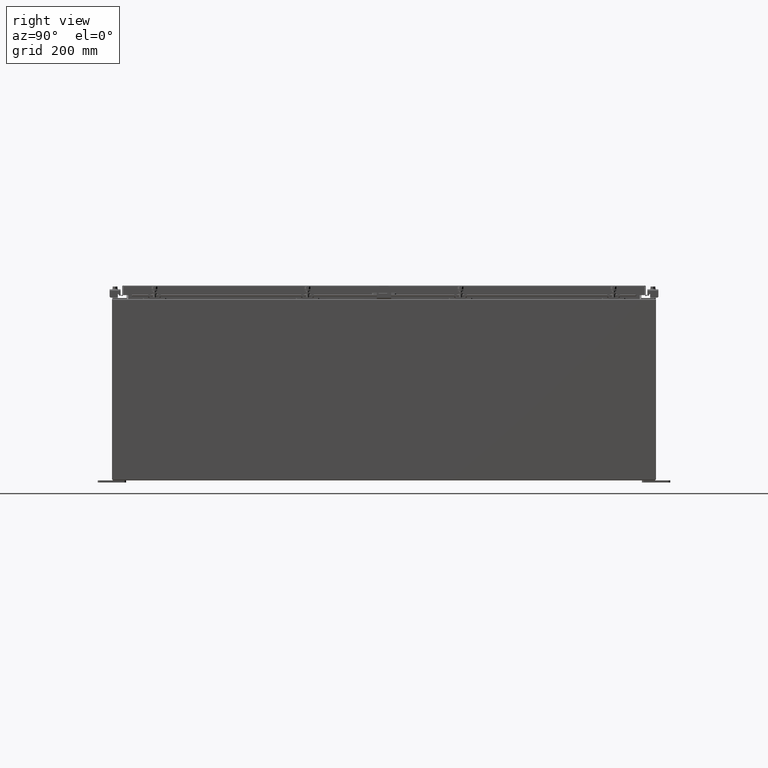
[diagram: clean part render]
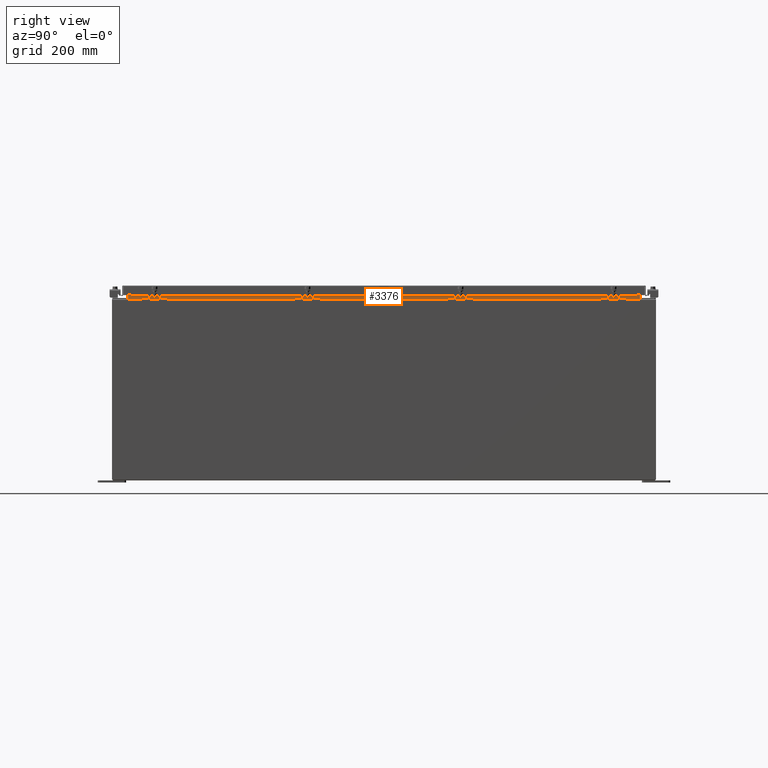
[diagram: same view with one face highlighted and labeled with its STEP entity id]
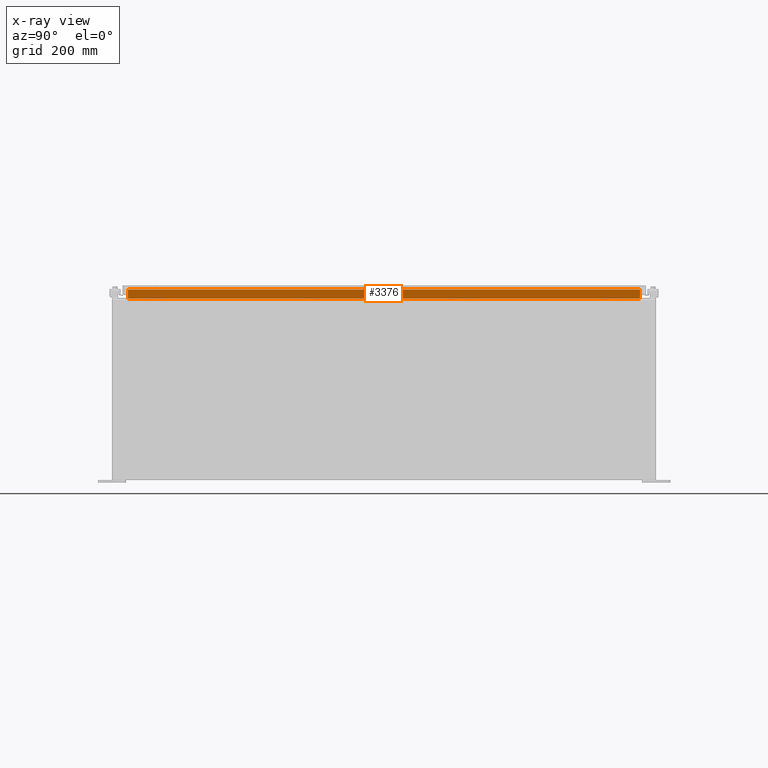
[diagram: x-ray of the same camera — body ghosted, the highlighted face saturated]
A machine part, right view. The second image highlights one B-rep face of the part: STEP entity #3376.
The next image is the same camera in x-ray: the body ghosted, the highlighted face saturated — about 0% of this face is hidden behind the body in this view.
In plain terms, the highlighted planar face has unit normal (1, 0, -0).
Its self-contained STEP definition (entity closure, byte-faithful):
#794 = VERTEX_POINT ( 'NONE', #6525 ) ;
#1243 = CARTESIAN_POINT ( 'NONE',  ( 16.69970000000005700, -22.59374999999998200, 16.85060000000000700 ) ) ;
#3097 = VECTOR ( 'NONE', #25308, 39.37007874015748100 ) ;
#3376 = ADVANCED_FACE ( 'NONE', ( #42208 ), #45730, .T. ) ;
#4997 = VECTOR ( 'NONE', #5474, 39.37007874015748100 ) ;
#5474 = DIRECTION ( 'NONE',  ( 4.723826639860397600E-015, -0.0000000000000000000, 1.000000000000000000 ) ) ;
#6525 = CARTESIAN_POINT ( 'NONE',  ( 16.69970000000005700, -22.59374999999998200, 16.76290000000000500 ) ) ;
#9575 = VECTOR ( 'NONE', #41329, 39.37007874015748100 ) ;
#10074 = EDGE_CURVE ( 'NONE', #20115, #16759, #14827, .T. ) ;
#14392 = CARTESIAN_POINT ( 'NONE',  ( 16.69970000000005700, -22.59374999999998200, 16.76290000000000500 ) ) ;
#14827 = LINE ( 'NONE', #25487, #3097 ) ;
#14897 = DIRECTION ( 'NONE',  ( 1.000000000000000000, 0.0000000000000000000, -4.723826639860386500E-015 ) ) ;
#15200 = CARTESIAN_POINT ( 'NONE',  ( 16.69969999999997900, 0.0000000000000000000, -7.888648773767637900E-014 ) ) ;
#16759 = VERTEX_POINT ( 'NONE', #48570 ) ;
#17438 = DIRECTION ( 'NONE',  ( -4.723826639860386500E-015, 0.0000000000000000000, -1.000000000000000000 ) ) ;
#20115 = VERTEX_POINT ( 'NONE', #25754 ) ;
#20716 = LINE ( 'NONE', #53661, #9575 ) ;
#25308 = DIRECTION ( 'NONE',  ( 4.836466710774910500E-017, -1.000000000000000000, 4.836466710774910500E-017 ) ) ;
#25487 = CARTESIAN_POINT ( 'NONE',  ( 16.69970000000005000, 22.59374999999997500, 15.93830000000000700 ) ) ;
#25748 = AXIS2_PLACEMENT_3D ( 'NONE', #15200, #14897, #17438 ) ;
#25754 = CARTESIAN_POINT ( 'NONE',  ( 16.69970000000005000, 22.59374999999997200, 15.93830000000000900 ) ) ;
#27204 = LINE ( 'NONE', #1243, #4997 ) ;
#28205 = ORIENTED_EDGE ( 'NONE', *, *, #39015, .F. ) ;
#30262 = CARTESIAN_POINT ( 'NONE',  ( 16.69970000000005700, 22.59374999999997500, 16.76290000000000500 ) ) ;
#33311 = EDGE_LOOP ( 'NONE', ( #34904, #28205, #43084, #42089 ) ) ;
#34904 = ORIENTED_EDGE ( 'NONE', *, *, #43966, .F. ) ;
#35885 = LINE ( 'NONE', #14392, #44325 ) ;
#39015 = EDGE_CURVE ( 'NONE', #794, #45961, #35885, .T. ) ;
#39428 = DIRECTION ( 'NONE',  ( 0.0000000000000000000, 1.000000000000000000, 0.0000000000000000000 ) ) ;
#41329 = DIRECTION ( 'NONE',  ( -4.723826639860386500E-015, -0.0000000000000000000, -1.000000000000000000 ) ) ;
#42089 = ORIENTED_EDGE ( 'NONE', *, *, #10074, .F. ) ;
#42208 = FACE_OUTER_BOUND ( 'NONE', #33311, .T. ) ;
#43084 = ORIENTED_EDGE ( 'NONE', *, *, #51624, .F. ) ;
#43966 = EDGE_CURVE ( 'NONE', #45961, #20115, #20716, .T. ) ;
#44325 = VECTOR ( 'NONE', #39428, 39.37007874015748100 ) ;
#45730 = PLANE ( 'NONE',  #25748 ) ;
#45961 = VERTEX_POINT ( 'NONE', #30262 ) ;
#48570 = CARTESIAN_POINT ( 'NONE',  ( 16.69970000000005000, -22.59374999999998900, 15.93830000000000900 ) ) ;
#51624 = EDGE_CURVE ( 'NONE', #16759, #794, #27204, .T. ) ;
#53661 = CARTESIAN_POINT ( 'NONE',  ( 16.69970000000005000, 22.59374999999997500, 15.92530000000000500 ) ) ;